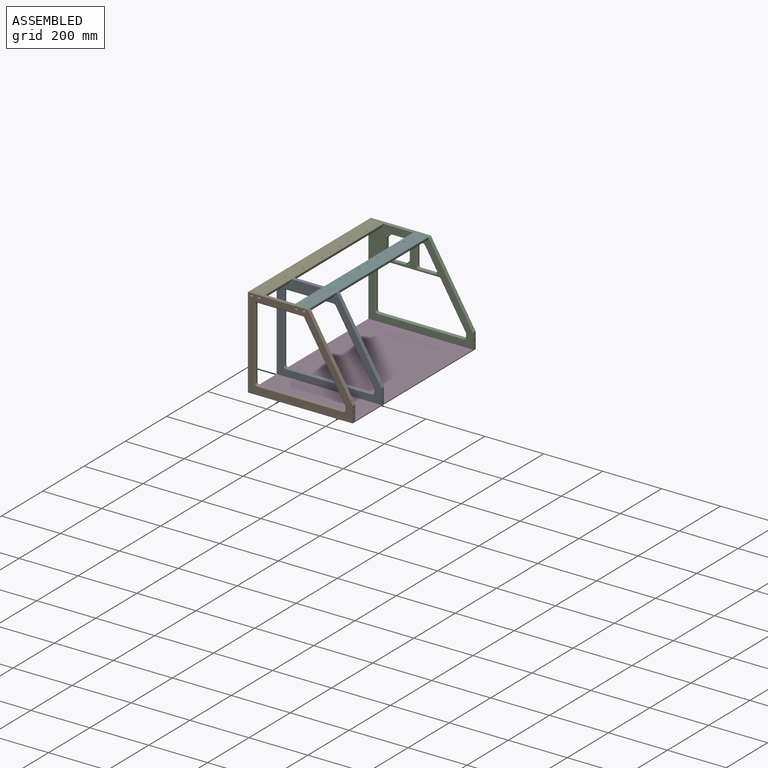
[diagram: assembled view]
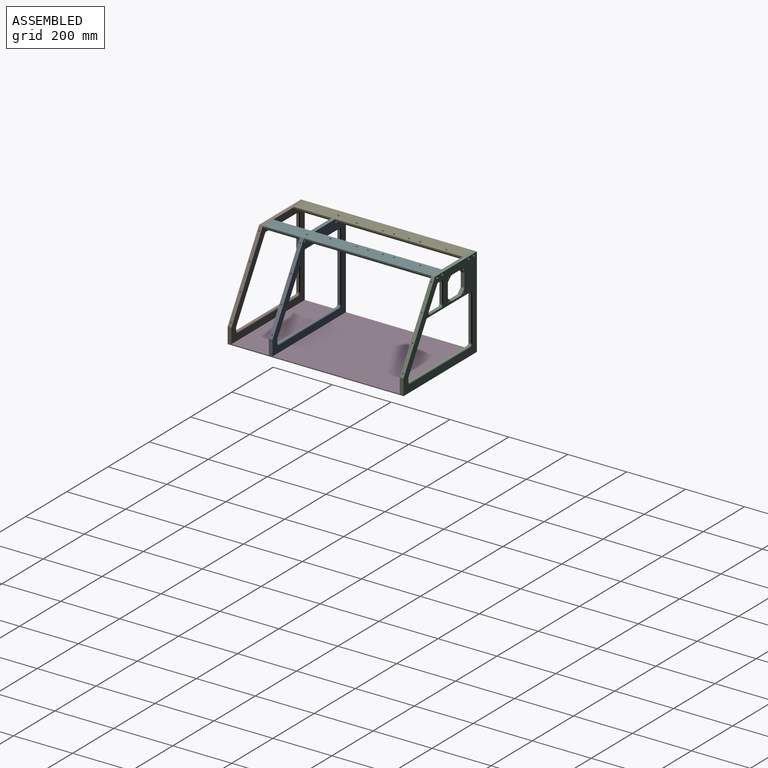
[diagram: assembled view, second angle]
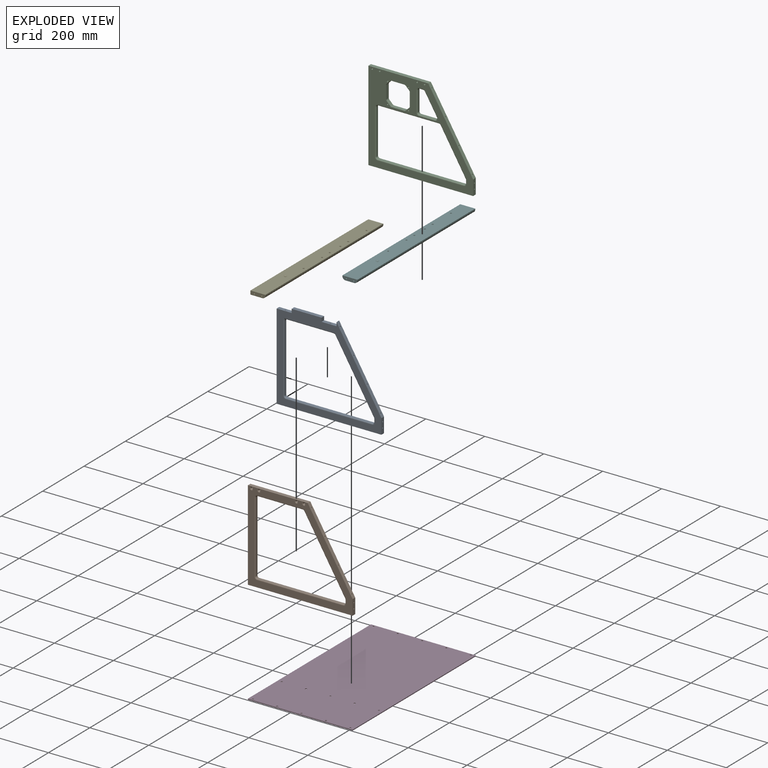
[diagram: exploded view]
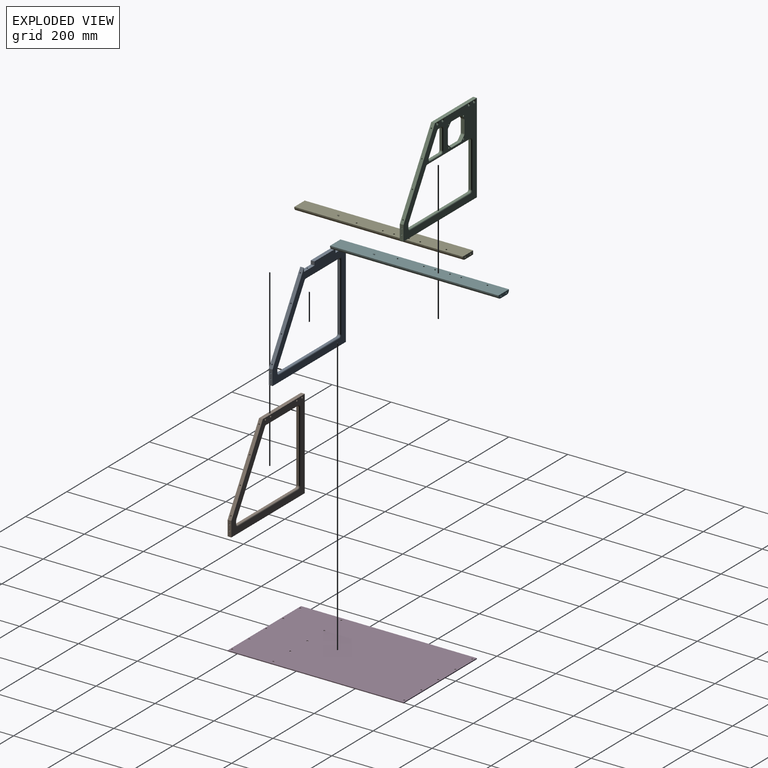
[diagram: exploded view, second angle]
ASSEMBLY  parts=6 mates=5
PART A: 81 faces, bbox 12.7x355.6x304.8 mm
  f0: cone r=2.52mm half-angle=45deg, axis (0,0,1), area 8.7mm2, adj f1,f67
  f1: cylinder r=2.1mm len=11.97mm, axis (0,0,1), area 157.9mm2, adj f0,f2
  f2: cone r=2.1mm half-angle=59deg, axis (0,0,1), area 16.2mm2, adj f1
  f3: cone r=2.52mm half-angle=45deg, axis (0,0,1), area 8.7mm2, adj f4,f64
  f4: cylinder r=2.1mm len=11.97mm, axis (0,0,1), area 157.9mm2, adj f3,f5
  f5: cone r=2.1mm half-angle=59deg, axis (0,0,1), area 16.2mm2, adj f4
  f6: cylinder r=2.1mm len=12.4mm, axis (0,1,0), area 163.6mm2, adj f7,f38
  f7: cone r=2.1mm half-angle=59deg, axis (0,1,0), area 16.2mm2, adj f6
  f8: cylinder r=2.1mm len=12.4mm, axis (0,1,0), area 163.6mm2, adj f9,f38
  f9: cone r=2.1mm half-angle=59deg, axis (0,1,0), area 16.2mm2, adj f8
  f10: cylinder r=2.1mm len=12.4mm, axis (0,-1,0), area 163.6mm2, adj f11,f36
  f11: cone r=2.1mm half-angle=59deg, axis (0,-1,0), area 16.2mm2, adj f10
  f12: cylinder r=2.1mm len=12.4mm, axis (0,-1,0), area 163.6mm2, adj f13,f36
  f13: cone r=2.1mm half-angle=59deg, axis (0,-1,0), area 16.2mm2, adj f12
  f14: cylinder r=2.1mm len=12.4mm, axis (0,-1,0), area 163.6mm2, adj f15,f36
  f15: cone r=2.1mm half-angle=59deg, axis (0,-1,0), area 16.2mm2, adj f14
  f16: cylinder r=2.1mm len=12.4mm, axis (0,-1,0), area 163.6mm2, adj f17,f36
  f17: cone r=2.1mm half-angle=59deg, axis (0,-1,0), area 16.2mm2, adj f16
  f18: cylinder r=2.1mm len=12.4mm, axis (0,0,-1), area 163.6mm2, adj f19,f37
  f19: cone r=2.1mm half-angle=59deg, axis (0,0,-1), area 16.2mm2, adj f18
  f20: cylinder r=2.1mm len=12.4mm, axis (0,0,-1), area 163.6mm2, adj f21,f37
  f21: cone r=2.1mm half-angle=59deg, axis (0,0,-1), area 16.2mm2, adj f20
  f22: cylinder r=2.1mm len=12.4mm, axis (0,0,-1), area 163.6mm2, adj f23,f37
  f23: cone r=2.1mm half-angle=59deg, axis (0,0,-1), area 16.2mm2, adj f22
  f24: cylinder r=2.1mm len=12.4mm, axis (0,0,-1), area 163.6mm2, adj f25,f37
  f25: cone r=2.1mm half-angle=59deg, axis (0,0,-1), area 16.2mm2, adj f24
  f26: cylinder r=2.1mm len=12.4mm, axis (0,0,-1), area 163.6mm2, adj f27,f37
  f27: cone r=2.1mm half-angle=59deg, axis (0,0,-1), area 16.2mm2, adj f26
  f28: cylinder r=2.1mm len=11.89mm, axis (0,0.86,0.51), area 133.1mm2, adj f39,f69
  f29: cylinder r=2.1mm len=12.79mm, axis (0,0.86,0.51), area 163.6mm2, adj f30,f39
  f30: cone r=2.1mm half-angle=59deg, axis (0,0.86,0.51), area 16.2mm2, adj f29
  f31: cylinder r=2.1mm len=12.79mm, axis (0,0.86,0.51), area 163.6mm2, adj f32,f39
  f32: cone r=2.1mm half-angle=59deg, axis (0,0.86,0.51), area 16.2mm2, adj f31
  f33: cylinder r=2.1mm len=12.79mm, axis (0,0.86,0.51), area 163.6mm2, adj f34,f39
  f34: cone r=2.1mm half-angle=59deg, axis (0,0.86,0.51), area 16.2mm2, adj f33
  f35: plane 101.6x12.7mm, normal (0,0,1), area 1290.3mm2, adj f40,f41,f65,f66
  f36: plane 292.1x12.7mm, normal (0,-1,0), area 3654.3mm2, adj f10,f12,f14,f16,f37,f40,f41,f67
  f37: plane 355.6x12.7mm, normal (0,0,-1), area 4446.8mm2, adj f18,f20,f22,f24,f26,f36,f38,f40
  f38: plane 50.8x12.7mm, normal (0,1,0), area 617.5mm2, adj f6,f8,f37,f39,f40,f41
  f39: plane 254x152.4mm, normal (0,0.86,0.51), area 3706.5mm2, adj f28,f29,f31,f33,f38,f40,f41,f63
  f40: plane 355.6x304.8mm, normal (1,0,0), area 25943.8mm2, adj f35,f36,f37,f38,f39,f56,f57,f58
  f41: plane 355.6x304.8mm, normal (-1,0,0), area 25943.8mm2, adj f35,f36,f37,f38,f39,f49,f50,f51
  f42: cylinder r=6.35mm len=6.35mm, axis (-1,0,0), area 63.3mm2, adj f43,f48,f50,f57
  f43: plane 10.26x6.35mm, normal (0,-1,0), area 65.1mm2, adj f42,f44,f52,f59
  f44: cylinder r=6.35mm len=6.35mm, axis (-1,0,0), area 21.8mm2, adj f43,f45,f54,f61
  f45: plane 217.73x130.64mm, normal (0,-0.86,-0.51), area 1612.3mm2, adj f44,f55,f62,f79
  f46: plane 227.33x6.35mm, normal (0,1,0), area 1443.5mm2, adj f47,f53,f60,f76
  f47: cylinder r=6.35mm len=6.35mm, axis (-1,0,0), area 63.3mm2, adj f46,f48,f51,f58
  f48: plane 292.1x6.35mm, normal (0,0,1), area 1854.8mm2, adj f42,f47,f49,f56
  f49: cylinder r=3.17mm len=292.1mm, axis (0,-1,0), area 1456.8mm2, adj f41,f48,f50,f51
  f50: torus R=9.53mm, axis (1,0,0), area 58.8mm2, adj f41,f42,f49,f52
  f51: torus R=9.53mm, axis (1,0,0), area 58.8mm2, adj f41,f47,f49,f53
  f52: cylinder r=3.17mm len=10.26mm, axis (0,0,-1), area 51.1mm2, adj f41,f43,f50,f54
  f53: cylinder r=3.17mm len=238.13mm, axis (0,0,1), area 1153.3mm2, adj f41,f46,f51,f77
  f54: torus R=9.53mm, axis (1,0,0), area 20.2mm2, adj f41,f44,f52,f55
  f55: cylinder r=3.17mm len=224.6mm, axis (0,0.51,-0.86), area 1277.4mm2, adj f41,f45,f54,f78
  f56: cylinder r=3.17mm len=292.1mm, axis (0,1,0), area 1456.8mm2, adj f40,f48,f57,f58
  f57: torus R=9.53mm, axis (1,0,0), area 58.8mm2, adj f40,f42,f56,f59
  f58: torus R=9.53mm, axis (1,0,0), area 58.8mm2, adj f40,f47,f56,f60
  f59: cylinder r=3.17mm len=10.26mm, axis (0,0,1), area 51.1mm2, adj f40,f43,f57,f61
  f60: cylinder r=3.17mm len=238.13mm, axis (0,0,-1), area 1153.3mm2, adj f40,f46,f58,f75
  f61: torus R=9.53mm, axis (1,0,0), area 20.2mm2, adj f40,f44,f59,f62
  f62: cylinder r=3.17mm len=224.6mm, axis (0,-0.51,0.86), area 1277.4mm2, adj f40,f45,f61,f80
  f63: plane 12.7x12.24mm, normal (0,-1,0), area 155.5mm2, adj f39,f40,f41,f73
  f64: plane 49.89x12.7mm, normal (0,0,1), area 613.5mm2, adj f3,f40,f41,f73,f74
  f65: plane 12.7x12.24mm, normal (0,1,0), area 155.5mm2, adj f35,f40,f41,f74
  f66: plane 12.7x12.24mm, normal (0,-1,0), area 155.5mm2, adj f35,f40,f41,f72
  f67: plane 50.34x12.7mm, normal (0,0,1), area 619.3mm2, adj f0,f36,f40,f41,f72
  f68: plane 159.1x6.35mm, normal (0,0,-1), area 1010.3mm2, adj f70,f71,f76,f79
  f69: plane 4.9x4.2mm, normal (0,1,0), area 16.2mm2, adj f28
  f70: cylinder r=3.17mm len=176.01mm, axis (0,-1,0), area 824.1mm2, adj f41,f68,f77,f78
  f71: cylinder r=3.17mm len=176.01mm, axis (0,1,0), area 824.1mm2, adj f40,f68,f75,f80
  f72: cylinder r=0.46mm len=12.7mm, axis (-1,0,0), area 9.1mm2, adj f40,f41,f66,f67
  f73: cylinder r=0.46mm len=12.7mm, axis (-1,0,0), area 9.1mm2, adj f40,f41,f63,f64
  f74: cylinder r=0.46mm len=12.7mm, axis (-1,0,0), area 9.1mm2, adj f40,f41,f64,f65
  f75: bspline ~10.8x10.8mm, area 51.1mm2, adj f60,f71,f76
  f76: cylinder r=7.62mm len=7.62mm, axis (1,0,0), area 76mm2, adj f46,f68,f75,f77
  f77: bspline ~10.8x10.8mm, area 51.1mm2, adj f53,f70,f76
  f78: bspline ~6.87x6.53mm, area 27.8mm2, adj f55,f70,f79
  f79: cylinder r=7.62mm len=6.53mm, axis (-1,0,0), area 49.9mm2, adj f45,f68,f78,f80
  f80: bspline ~6.87x6.53mm, area 27.8mm2, adj f62,f71,f79
PART B: 75 faces, bbox 12.7x355.6x304.8 mm
  f0: cylinder r=2.1mm len=12.4mm, axis (0,1,0), area 163.6mm2, adj f1,f41
  f1: cone r=2.1mm half-angle=59deg, axis (0,1,0), area 16.2mm2, adj f0
  f2: cylinder r=2.1mm len=12.4mm, axis (0,1,0), area 163.6mm2, adj f3,f41
  f3: cone r=2.1mm half-angle=59deg, axis (0,1,0), area 16.2mm2, adj f2
  f4: cylinder r=2.1mm len=12.4mm, axis (0,-1,0), area 163.6mm2, adj f5,f39
  f5: cone r=2.1mm half-angle=59deg, axis (0,-1,0), area 16.2mm2, adj f4
  f6: cylinder r=2.1mm len=12.4mm, axis (0,-1,0), area 163.6mm2, adj f7,f39
  f7: cone r=2.1mm half-angle=59deg, axis (0,-1,0), area 16.2mm2, adj f6
  f8: cylinder r=2.1mm len=12.4mm, axis (0,-1,0), area 163.6mm2, adj f9,f39
  f9: cone r=2.1mm half-angle=59deg, axis (0,-1,0), area 16.2mm2, adj f8
  f10: cylinder r=2.1mm len=12.4mm, axis (0,-1,0), area 163.6mm2, adj f11,f39
  f11: cone r=2.1mm half-angle=59deg, axis (0,-1,0), area 16.2mm2, adj f10
  f12: cylinder r=2.1mm len=12.4mm, axis (0,0,-1), area 163.6mm2, adj f13,f40
  f13: cone r=2.1mm half-angle=59deg, axis (0,0,-1), area 16.2mm2, adj f12
  f14: cylinder r=2.1mm len=12.4mm, axis (0,0,-1), area 163.6mm2, adj f15,f40
  f15: cone r=2.1mm half-angle=59deg, axis (0,0,-1), area 16.2mm2, adj f14
  f16: cylinder r=2.1mm len=12.4mm, axis (0,0,-1), area 163.6mm2, adj f17,f40
  f17: cone r=2.1mm half-angle=59deg, axis (0,0,-1), area 16.2mm2, adj f16
  f18: cylinder r=2.1mm len=12.4mm, axis (0,0,-1), area 163.6mm2, adj f19,f40
  f19: cone r=2.1mm half-angle=59deg, axis (0,0,-1), area 16.2mm2, adj f18
  f20: cylinder r=2.1mm len=12.4mm, axis (0,0,-1), area 163.6mm2, adj f21,f40
  f21: cone r=2.1mm half-angle=59deg, axis (0,0,-1), area 16.2mm2, adj f20
  f22: cone r=5.2mm half-angle=45deg, axis (1,0,0), area 86.5mm2, adj f23,f43
  f23: cylinder r=2.75mm len=10.25mm, axis (1,0,0), area 177.1mm2, adj f22,f44
  f24: cone r=5.2mm half-angle=45deg, axis (1,0,0), area 86.5mm2, adj f25,f43
  f25: cylinder r=2.75mm len=10.25mm, axis (1,0,0), area 177.1mm2, adj f24,f44
  f26: cone r=5.2mm half-angle=45deg, axis (1,0,0), area 86.5mm2, adj f27,f43
  f27: cylinder r=2.75mm len=10.25mm, axis (1,0,0), area 177.1mm2, adj f26,f44
  f28: cone r=5.2mm half-angle=45deg, axis (1,0,0), area 86.5mm2, adj f29,f43
  f29: cylinder r=2.75mm len=10.25mm, axis (1,0,0), area 177.1mm2, adj f28,f44
  f30: cylinder r=2.1mm len=12.79mm, axis (0,0.86,0.51), area 163.6mm2, adj f31,f42
  f31: cone r=2.1mm half-angle=59deg, axis (0,0.86,0.51), area 16.2mm2, adj f30
  f32: cylinder r=2.1mm len=12.79mm, axis (0,0.86,0.51), area 163.6mm2, adj f33,f42
  f33: cone r=2.1mm half-angle=59deg, axis (0,0.86,0.51), area 16.2mm2, adj f32
  f34: cylinder r=2.1mm len=12.79mm, axis (0,0.86,0.51), area 163.6mm2, adj f35,f42
  f35: cone r=2.1mm half-angle=59deg, axis (0,0.86,0.51), area 16.2mm2, adj f34
  f36: cylinder r=2.1mm len=12.79mm, axis (0,0.86,0.51), area 163.6mm2, adj f37,f42
  f37: cone r=2.1mm half-angle=59deg, axis (0,0.86,0.51), area 16.2mm2, adj f36
  f38: plane 203.2x12.7mm, normal (0,0,1), area 2580.6mm2, adj f39,f42,f43,f44
  f39: plane 304.8x12.7mm, normal (0,-1,0), area 3815.5mm2, adj f4,f6,f8,f10,f38,f40,f43,f44
  f40: plane 355.6x12.7mm, normal (0,0,-1), area 4446.8mm2, adj f12,f14,f16,f18,f20,f39,f41,f43
  f41: plane 50.8x12.7mm, normal (0,1,0), area 617.5mm2, adj f0,f2,f40,f42,f43,f44
  f42: plane 254x152.4mm, normal (0,0.86,0.51), area 3706.5mm2, adj f30,f32,f34,f36,f38,f41,f43,f44
  f43: plane 355.6x304.8mm, normal (1,0,0), area 24731.4mm2, adj f22,f24,f26,f28,f38,f39,f40,f41
  f44: plane 355.6x304.8mm, normal (-1,0,0), area 24976.1mm2, adj f23,f25,f27,f29,f38,f39,f40,f41
  f45: cylinder r=6.35mm len=6.35mm, axis (-1,0,0), area 63.3mm2, adj f46,f54,f56,f66
  f46: plane 10.26x6.35mm, normal (0,-1,0), area 65.1mm2, adj f45,f47,f58,f68
  f47: cylinder r=6.35mm len=6.35mm, axis (-1,0,0), area 21.8mm2, adj f46,f48,f60,f70
  f48: plane 231.04x138.63mm, normal (0,-0.86,-0.51), area 1711mm2, adj f47,f49,f62,f72
  f49: cylinder r=6.35mm len=6.35mm, axis (-1,0,0), area 41.5mm2, adj f48,f50,f64,f74
  f50: plane 153.47x6.35mm, normal (0,0,-1), area 974.6mm2, adj f49,f51,f63,f73
  f51: cylinder r=6.35mm len=6.35mm, axis (-1,0,0), area 63.3mm2, adj f50,f52,f61,f71
  f52: plane 241.3x6.35mm, normal (0,1,0), area 1532.3mm2, adj f51,f53,f59,f69
  f53: cylinder r=6.35mm len=6.35mm, axis (-1,0,0), area 63.3mm2, adj f52,f54,f57,f67
  f54: plane 292.1x6.35mm, normal (0,0,1), area 1854.8mm2, adj f45,f53,f55,f65
  f55: cylinder r=3.17mm len=292.1mm, axis (0,-1,0), area 1456.8mm2, adj f44,f54,f56,f57
  f56: torus R=9.53mm, axis (1,0,0), area 58.8mm2, adj f44,f45,f55,f58
  f57: torus R=9.53mm, axis (1,0,0), area 58.8mm2, adj f44,f53,f55,f59
  f58: cylinder r=3.17mm len=10.26mm, axis (0,0,-1), area 51.1mm2, adj f44,f46,f56,f60
  f59: cylinder r=3.17mm len=241.3mm, axis (0,0,1), area 1203.4mm2, adj f44,f52,f57,f61
  f60: torus R=9.53mm, axis (1,0,0), area 20.2mm2, adj f44,f47,f58,f62
  f61: torus R=9.53mm, axis (1,0,0), area 58.8mm2, adj f44,f51,f59,f63
  f62: cylinder r=3.17mm len=232.68mm, axis (0,0.51,-0.86), area 1343.8mm2, adj f44,f48,f60,f64
  f63: cylinder r=3.17mm len=153.47mm, axis (0,1,0), area 765.4mm2, adj f44,f50,f61,f64
  f64: torus R=9.53mm, axis (1,0,0), area 38.6mm2, adj f44,f49,f62,f63
  f65: cylinder r=3.17mm len=292.1mm, axis (0,1,0), area 1456.8mm2, adj f43,f54,f66,f67
  f66: torus R=9.53mm, axis (1,0,0), area 58.8mm2, adj f43,f45,f65,f68
  f67: torus R=9.53mm, axis (1,0,0), area 58.8mm2, adj f43,f53,f65,f69
  f68: cylinder r=3.17mm len=10.26mm, axis (0,0,1), area 51.1mm2, adj f43,f46,f66,f70
  f69: cylinder r=3.17mm len=241.3mm, axis (0,0,-1), area 1203.4mm2, adj f43,f52,f67,f71
  f70: torus R=9.53mm, axis (1,0,0), area 20.2mm2, adj f43,f47,f68,f72
  f71: torus R=9.53mm, axis (1,0,0), area 58.8mm2, adj f43,f51,f69,f73
  f72: cylinder r=3.17mm len=232.68mm, axis (0,-0.51,0.86), area 1343.8mm2, adj f43,f48,f70,f74
  f73: cylinder r=3.17mm len=153.47mm, axis (0,-1,0), area 765.4mm2, adj f43,f50,f71,f74
  f74: torus R=9.53mm, axis (1,0,0), area 38.6mm2, adj f43,f49,f72,f73
PART C: 111 faces, bbox 12.7x355.6x304.8 mm
  f0: cylinder r=2.38mm len=12.7mm, axis (1,0,0), area 190mm2, adj f41,f42
  f1: cylinder r=2.38mm len=12.7mm, axis (1,0,0), area 190mm2, adj f41,f42
  f2: cylinder r=2.38mm len=12.7mm, axis (1,0,0), area 190mm2, adj f41,f42
  f3: cylinder r=2.38mm len=12.7mm, axis (1,0,0), area 190mm2, adj f41,f42
  f4: cone r=5.2mm half-angle=45deg, axis (-1,0,0), area 86.5mm2, adj f5,f42
  f5: cylinder r=2.75mm len=10.25mm, axis (-1,0,0), area 177.1mm2, adj f4,f41
  f6: cone r=5.2mm half-angle=45deg, axis (-1,0,0), area 86.5mm2, adj f7,f42
  f7: cylinder r=2.75mm len=10.25mm, axis (-1,0,0), area 177.1mm2, adj f6,f41
  f8: cone r=5.2mm half-angle=45deg, axis (-1,0,0), area 86.5mm2, adj f9,f42
  f9: cylinder r=2.75mm len=10.25mm, axis (-1,0,0), area 177.1mm2, adj f8,f41
  f10: cone r=5.2mm half-angle=45deg, axis (-1,0,0), area 86.5mm2, adj f11,f42
  f11: cylinder r=2.75mm len=10.25mm, axis (-1,0,0), area 177.1mm2, adj f10,f41
  f12: torus R=9.53mm, axis (1,0,0), area 79mm2, adj f42,f72,f87,f90
  f13: torus R=9.53mm, axis (1,0,0), area 79mm2, adj f41,f72,f80,f83
  f14: cylinder r=2.1mm len=12.4mm, axis (0,1,0), area 163.6mm2, adj f15,f39
  f15: cone r=2.1mm half-angle=59deg, axis (0,1,0), area 16.2mm2, adj f14
  f16: cylinder r=2.1mm len=12.4mm, axis (0,1,0), area 163.6mm2, adj f17,f39
  f17: cone r=2.1mm half-angle=59deg, axis (0,1,0), area 16.2mm2, adj f16
  f18: cylinder r=2.1mm len=12.4mm, axis (0,0,-1), area 163.6mm2, adj f19,f38
  f19: cone r=2.1mm half-angle=59deg, axis (0,0,-1), area 16.2mm2, adj f18
  f20: cylinder r=2.1mm len=12.4mm, axis (0,0,-1), area 163.6mm2, adj f21,f38
  f21: cone r=2.1mm half-angle=59deg, axis (0,0,-1), area 16.2mm2, adj f20
  f22: cylinder r=2.1mm len=12.4mm, axis (0,0,-1), area 163.6mm2, adj f23,f38
  f23: cone r=2.1mm half-angle=59deg, axis (0,0,-1), area 16.2mm2, adj f22
  f24: cylinder r=2.1mm len=12.4mm, axis (0,0,-1), area 163.6mm2, adj f25,f38
  f25: cone r=2.1mm half-angle=59deg, axis (0,0,-1), area 16.2mm2, adj f24
  f26: cylinder r=2.1mm len=12.4mm, axis (0,0,-1), area 163.6mm2, adj f27,f38
  f27: cone r=2.1mm half-angle=59deg, axis (0,0,-1), area 16.2mm2, adj f26
  f28: cylinder r=2.1mm len=12.79mm, axis (0,0.86,0.51), area 163.6mm2, adj f29,f40
  f29: cone r=2.1mm half-angle=59deg, axis (0,0.86,0.51), area 16.2mm2, adj f28
  f30: cylinder r=2.1mm len=12.79mm, axis (0,0.86,0.51), area 163.6mm2, adj f31,f40
  f31: cone r=2.1mm half-angle=59deg, axis (0,0.86,0.51), area 16.2mm2, adj f30
  f32: cylinder r=2.1mm len=12.79mm, axis (0,0.86,0.51), area 163.6mm2, adj f33,f40
  f33: cone r=2.1mm half-angle=59deg, axis (0,0.86,0.51), area 16.2mm2, adj f32
  f34: cylinder r=2.1mm len=12.79mm, axis (0,0.86,0.51), area 163.6mm2, adj f35,f40
  f35: cone r=2.1mm half-angle=59deg, axis (0,0.86,0.51), area 16.2mm2, adj f34
  f36: plane 203.2x12.7mm, normal (0,0,1), area 2580.6mm2, adj f37,f40,f41,f42
  f37: plane 304.8x12.7mm, normal (0,-1,0), area 3871mm2, adj f36,f38,f41,f42
  f38: plane 355.6x12.7mm, normal (0,0,-1), area 4446.8mm2, adj f18,f20,f22,f24,f26,f37,f39,f41
  f39: plane 50.8x12.7mm, normal (0,1,0), area 617.5mm2, adj f14,f16,f38,f40,f41,f42
  f40: plane 254x152.4mm, normal (0,0.86,0.51), area 3706.5mm2, adj f28,f30,f32,f34,f36,f39,f41,f42
  f41: plane 355.6x304.8mm, normal (1,0,0), area 31754.1mm2, adj f0,f1,f2,f3,f5,f7,f9,f11
  f42: plane 355.6x304.8mm, normal (-1,0,0), area 31509.3mm2, adj f0,f1,f2,f3,f4,f6,f8,f10
  f43: cylinder r=6.35mm len=6.35mm, axis (-1,0,0), area 63.3mm2, adj f44,f49,f51,f58
  f44: plane 10.26x6.35mm, normal (0,-1,0), area 65.1mm2, adj f43,f45,f53,f60
  f45: cylinder r=6.35mm len=6.35mm, axis (-1,0,0), area 21.8mm2, adj f44,f46,f55,f62
  f46: plane 142.14x85.29mm, normal (0,-0.86,-0.51), area 1052.6mm2, adj f45,f56,f63,f66
  f47: plane 152.4x6.35mm, normal (0,1,0), area 967.7mm2, adj f48,f54,f61,f64
  f48: cylinder r=6.35mm len=6.35mm, axis (-1,0,0), area 63.3mm2, adj f47,f49,f52,f59
  f49: plane 292.1x6.35mm, normal (0,0,1), area 1854.8mm2, adj f43,f48,f50,f57
  f50: cylinder r=3.17mm len=292.1mm, axis (0,-1,0), area 1456.8mm2, adj f42,f49,f51,f52
  f51: torus R=9.53mm, axis (1,0,0), area 58.8mm2, adj f42,f43,f50,f53
  f52: torus R=9.53mm, axis (1,0,0), area 58.8mm2, adj f42,f48,f50,f54
  f53: cylinder r=3.17mm len=10.26mm, axis (0,0,-1), area 51.1mm2, adj f42,f44,f51,f55
  f54: cylinder r=3.17mm len=152.4mm, axis (0,0,1), area 760.1mm2, adj f42,f47,f52,f96
  f55: torus R=9.53mm, axis (1,0,0), area 20.2mm2, adj f42,f45,f53,f56
  f56: cylinder r=3.17mm len=143.78mm, axis (0,0.51,-0.86), area 826.7mm2, adj f42,f46,f55,f98
  f57: cylinder r=3.17mm len=292.1mm, axis (0,1,0), area 1456.8mm2, adj f41,f49,f58,f59
  f58: torus R=9.53mm, axis (1,0,0), area 58.8mm2, adj f41,f43,f57,f60
  f59: torus R=9.53mm, axis (1,0,0), area 58.8mm2, adj f41,f48,f57,f61
  f60: cylinder r=3.17mm len=10.26mm, axis (0,0,1), area 51.1mm2, adj f41,f44,f58,f62
  f61: cylinder r=3.17mm len=152.4mm, axis (0,0,-1), area 760.1mm2, adj f41,f47,f59,f93
  f62: torus R=9.53mm, axis (1,0,0), area 20.2mm2, adj f41,f45,f60,f63
  f63: cylinder r=3.17mm len=143.78mm, axis (0,-0.51,0.86), area 826.7mm2, adj f41,f46,f62,f95
  f64: cylinder r=6.35mm len=6.35mm, axis (-1,0,0), area 63.3mm2, adj f47,f65,f93,f96
  f65: plane 206.81x6.35mm, normal (0,0,-1), area 1313.3mm2, adj f64,f66,f94,f97
  f66: cylinder r=6.35mm len=6.35mm, axis (-1,0,0), area 41.5mm2, adj f46,f65,f95,f98
  f67: plane 43.32x12.7mm, normal (0,1,0), area 550.1mm2, adj f41,f42,f104,f107
  f68: plane 43.32x12.7mm, normal (0,0,1), area 550.1mm2, adj f41,f42,f103,f106
  f69: plane 43.32x12.7mm, normal (0,-1,0), area 550.1mm2, adj f41,f42,f105,f110
  f70: cylinder r=6.35mm len=6.35mm, axis (-1,0,0), area 63.3mm2, adj f71,f74,f85,f92
  f71: plane 53.4x6.35mm, normal (0,0,1), area 339.1mm2, adj f70,f72,f83,f90
  f72: cylinder r=6.35mm len=9.62mm, axis (-1,0,0), area 85.1mm2, adj f12,f13,f71,f77
  f73: cylinder r=6.35mm len=6.35mm, axis (-1,0,0), area 63.3mm2, adj f74,f76,f82,f89
  f74: plane 67.63x6.35mm, normal (0,1,0), area 429.4mm2, adj f70,f73,f84,f91
  f75: cylinder r=6.35mm len=6.35mm, axis (-1,0,0), area 41.5mm2, adj f76,f77,f79,f86
  f76: plane 12.82x6.35mm, normal (0,0,-1), area 81.4mm2, adj f73,f75,f81,f88
  f77: plane 67.63x40.58mm, normal (0,-0.86,-0.51), area 500.8mm2, adj f72,f75,f80,f87
  f78: plane 43.32x12.7mm, normal (0,0,-1), area 550.1mm2, adj f41,f42,f108,f109
  f79: torus R=9.53mm, axis (1,0,0), area 38.6mm2, adj f41,f75,f80,f81
  f80: cylinder r=3.17mm len=69.26mm, axis (0,-0.51,0.86), area 393.3mm2, adj f13,f41,f77,f79
  f81: cylinder r=3.17mm len=12.82mm, axis (0,-1,0), area 63.9mm2, adj f41,f76,f79,f82
  f82: torus R=9.53mm, axis (1,0,0), area 58.8mm2, adj f41,f73,f81,f84
  f83: cylinder r=3.17mm len=53.4mm, axis (0,1,0), area 266.3mm2, adj f13,f41,f71,f85
  f84: cylinder r=3.17mm len=67.63mm, axis (0,0,-1), area 337.3mm2, adj f41,f74,f82,f85
  f85: torus R=9.53mm, axis (1,0,0), area 58.8mm2, adj f41,f70,f83,f84
  f86: torus R=9.53mm, axis (1,0,0), area 38.6mm2, adj f42,f75,f87,f88
  f87: cylinder r=3.17mm len=69.26mm, axis (0,0.51,-0.86), area 393.3mm2, adj f12,f42,f77,f86
  f88: cylinder r=3.17mm len=12.82mm, axis (0,1,0), area 63.9mm2, adj f42,f76,f86,f89
  f89: torus R=9.53mm, axis (1,0,0), area 58.8mm2, adj f42,f73,f88,f91
  f90: cylinder r=3.17mm len=53.4mm, axis (0,-1,0), area 266.3mm2, adj f12,f42,f71,f92
  f91: cylinder r=3.17mm len=67.63mm, axis (0,0,1), area 337.3mm2, adj f42,f74,f89,f92
  f92: torus R=9.53mm, axis (1,0,0), area 58.8mm2, adj f42,f70,f90,f91
  f93: torus R=9.53mm, axis (1,0,0), area 58.8mm2, adj f41,f61,f64,f94
  f94: cylinder r=3.17mm len=206.81mm, axis (0,-1,0), area 1031.4mm2, adj f41,f65,f93,f95
  f95: torus R=9.53mm, axis (1,0,0), area 38.6mm2, adj f41,f63,f66,f94
  f96: torus R=9.53mm, axis (1,0,0), area 58.8mm2, adj f42,f54,f64,f97
  f97: cylinder r=3.17mm len=206.81mm, axis (0,1,0), area 1031.4mm2, adj f42,f65,f96,f98
  f98: torus R=9.53mm, axis (1,0,0), area 38.6mm2, adj f42,f56,f66,f97
  f99: plane 12.7x12.16mm, normal (0,-0.71,-0.71), area 218.3mm2, adj f41,f42,f109,f110
  f100: plane 12.7x12.16mm, normal (0,0.71,-0.71), area 218.3mm2, adj f41,f42,f107,f108
  f101: plane 12.7x12.16mm, normal (0,-0.71,0.71), area 218.3mm2, adj f41,f42,f105,f106
  f102: plane 12.7x12.16mm, normal (0,0.71,0.71), area 218.3mm2, adj f41,f42,f103,f104
  f103: cylinder r=6.35mm len=12.7mm, axis (1,0,0), area 63.3mm2, adj f41,f42,f68,f102
  f104: cylinder r=6.35mm len=12.7mm, axis (1,0,0), area 63.3mm2, adj f41,f42,f67,f102
  f105: cylinder r=6.35mm len=12.7mm, axis (1,0,0), area 63.3mm2, adj f41,f42,f69,f101
  f106: cylinder r=6.35mm len=12.7mm, axis (1,0,0), area 63.3mm2, adj f41,f42,f68,f101
  f107: cylinder r=6.35mm len=12.7mm, axis (1,0,0), area 63.3mm2, adj f41,f42,f67,f100
  f108: cylinder r=6.35mm len=12.7mm, axis (1,0,0), area 63.3mm2, adj f41,f42,f78,f100
  f109: cylinder r=6.35mm len=12.7mm, axis (1,0,0), area 63.3mm2, adj f41,f42,f78,f99
  f110: cylinder r=6.35mm len=12.7mm, axis (1,0,0), area 63.3mm2, adj f41,f42,f69,f99
PART D: 36 faces, bbox 355.6x596.9x3.2 mm
  f0: cone r=5.2mm half-angle=45deg, axis (0,0,-1), area 86.5mm2, adj f1,f35
  f1: cylinder r=2.75mm len=5.5mm, axis (0,0,-1), area 12.5mm2, adj f0,f34
  f2: cone r=5.2mm half-angle=45deg, axis (0,0,-1), area 86.5mm2, adj f3,f35
  f3: cylinder r=2.75mm len=5.5mm, axis (0,0,-1), area 12.5mm2, adj f2,f34
  f4: cone r=5.2mm half-angle=45deg, axis (0,0,-1), area 86.5mm2, adj f5,f35
  f5: cylinder r=2.75mm len=5.5mm, axis (0,0,-1), area 12.5mm2, adj f4,f34
  f6: cone r=5.2mm half-angle=45deg, axis (0,0,-1), area 86.5mm2, adj f7,f35
  f7: cylinder r=2.75mm len=5.5mm, axis (0,0,-1), area 12.5mm2, adj f6,f34
  f8: cone r=5.2mm half-angle=45deg, axis (0,0,-1), area 86.5mm2, adj f9,f35
  f9: cylinder r=2.75mm len=5.5mm, axis (0,0,-1), area 12.5mm2, adj f8,f34
  f10: cone r=5.2mm half-angle=45deg, axis (0,0,-1), area 86.5mm2, adj f11,f35
  f11: cylinder r=2.75mm len=5.5mm, axis (0,0,-1), area 12.5mm2, adj f10,f34
  f12: cone r=5.2mm half-angle=45deg, axis (0,0,-1), area 86.5mm2, adj f13,f35
  f13: cylinder r=2.75mm len=5.5mm, axis (0,0,-1), area 12.5mm2, adj f12,f34
  f14: cone r=5.2mm half-angle=45deg, axis (0,0,-1), area 86.5mm2, adj f15,f35
  f15: cylinder r=2.75mm len=5.5mm, axis (0,0,-1), area 12.5mm2, adj f14,f34
  f16: cone r=5.2mm half-angle=45deg, axis (0,0,-1), area 86.5mm2, adj f17,f35
  f17: cylinder r=2.75mm len=5.5mm, axis (0,0,-1), area 12.5mm2, adj f16,f34
  f18: cone r=5.2mm half-angle=45deg, axis (0,0,-1), area 86.5mm2, adj f19,f35
  f19: cylinder r=2.75mm len=5.5mm, axis (0,0,-1), area 12.5mm2, adj f18,f34
  f20: cone r=5.2mm half-angle=45deg, axis (0,0,-1), area 86.5mm2, adj f21,f35
  f21: cylinder r=2.75mm len=5.5mm, axis (0,0,-1), area 12.5mm2, adj f20,f34
  f22: cone r=5.2mm half-angle=45deg, axis (0,0,-1), area 86.5mm2, adj f23,f35
  f23: cylinder r=2.75mm len=5.5mm, axis (0,0,-1), area 12.5mm2, adj f22,f34
  f24: cone r=5.2mm half-angle=45deg, axis (0,0,-1), area 86.5mm2, adj f25,f35
  f25: cylinder r=2.75mm len=5.5mm, axis (0,0,-1), area 12.5mm2, adj f24,f34
  f26: cone r=5.2mm half-angle=45deg, axis (0,0,-1), area 86.5mm2, adj f27,f35
  f27: cylinder r=2.75mm len=5.5mm, axis (0,0,-1), area 12.5mm2, adj f26,f34
  f28: cone r=5.2mm half-angle=45deg, axis (0,0,-1), area 86.5mm2, adj f29,f35
  f29: cylinder r=2.75mm len=5.5mm, axis (0,0,-1), area 12.5mm2, adj f28,f34
  f30: plane 355.6x3.18mm, normal (0,1,0), area 1129mm2, adj f31,f33,f34,f35
  f31: plane 596.9x3.18mm, normal (-1,0,0), area 1895.2mm2, adj f30,f32,f34,f35
  f32: plane 355.6x3.18mm, normal (0,-1,0), area 1129mm2, adj f31,f33,f34,f35
  f33: plane 596.9x3.18mm, normal (1,0,0), area 1895.2mm2, adj f30,f32,f34,f35
  f34: plane 596.9x355.6mm, normal (0,0,1), area 211901.3mm2, adj f1,f3,f5,f7,f9,f11,f13,f15
  f35: plane 596.9x355.6mm, normal (0,0,-1), area 210983.4mm2, adj f0,f2,f4,f6,f8,f10,f12,f14
PART E: 33 faces, bbox 571.5x50.8x12.7 mm
  f0: cylinder r=2.1mm len=8.74mm, axis (0,0,-1), area 115.3mm2, adj f1,f31
  f1: cone r=2.1mm half-angle=59deg, axis (0,0,-1), area 16.2mm2, adj f0
  f2: cylinder r=2.1mm len=8.74mm, axis (0,0,-1), area 115.3mm2, adj f3,f31
  f3: cone r=2.1mm half-angle=59deg, axis (0,0,-1), area 16.2mm2, adj f2
  f4: cone r=5.2mm half-angle=45deg, axis (0,0,1), area 86.5mm2, adj f5,f30
  f5: cylinder r=2.75mm len=10.25mm, axis (0,0,1), area 177.1mm2, adj f4,f31
  f6: cone r=5.2mm half-angle=45deg, axis (0,0,-1), area 84.2mm2, adj f7,f31,f32
  f7: cylinder r=2.75mm len=10.25mm, axis (0,0,-1), area 177.1mm2, adj f6,f30
  f8: cone r=5.2mm half-angle=45deg, axis (0,0,-1), area 84.2mm2, adj f9,f31,f32
  f9: cylinder r=2.75mm len=10.25mm, axis (0,0,-1), area 177.1mm2, adj f8,f30
  f10: cone r=5.2mm half-angle=45deg, axis (0,0,-1), area 84.2mm2, adj f11,f31,f32
  f11: cylinder r=2.75mm len=10.25mm, axis (0,0,-1), area 177.1mm2, adj f10,f30
  f12: cone r=5.2mm half-angle=45deg, axis (0,0,-1), area 84.2mm2, adj f13,f31,f32
  f13: cylinder r=2.75mm len=10.25mm, axis (0,0,-1), area 177.1mm2, adj f12,f30
  f14: cone r=5.2mm half-angle=45deg, axis (0,0,-1), area 84.2mm2, adj f15,f31,f32
  f15: cylinder r=2.75mm len=10.25mm, axis (0,0,-1), area 177.1mm2, adj f14,f30
  f16: cone r=5.2mm half-angle=45deg, axis (0,0,-1), area 84.2mm2, adj f17,f31,f32
  f17: cylinder r=2.75mm len=10.25mm, axis (0,0,-1), area 177.1mm2, adj f16,f30
  f18: cylinder r=2.1mm len=12.4mm, axis (1,0,0), area 163.6mm2, adj f19,f26
  f19: cone r=2.1mm half-angle=59deg, axis (1,0,0), area 16.2mm2, adj f18
  f20: cylinder r=2.1mm len=12.4mm, axis (1,0,0), area 163.6mm2, adj f21,f26
  f21: cone r=2.1mm half-angle=59deg, axis (1,0,0), area 16.2mm2, adj f20
  f22: cylinder r=2.1mm len=12.4mm, axis (-1,0,0), area 163.6mm2, adj f23,f28
  f23: cone r=2.1mm half-angle=59deg, axis (-1,0,0), area 16.2mm2, adj f22
  f24: cylinder r=2.1mm len=12.4mm, axis (-1,0,0), area 163.6mm2, adj f25,f28
  f25: cone r=2.1mm half-angle=59deg, axis (-1,0,0), area 16.2mm2, adj f24
  f26: plane 50.8x12.7mm, normal (1,0,0), area 595.3mm2, adj f18,f20,f27,f29,f30,f31,f32
  f27: plane 571.5x2.54mm, normal (0,-1,0), area 1451.6mm2, adj f26,f28,f30,f32
  f28: plane 50.8x12.7mm, normal (-1,0,0), area 595.3mm2, adj f22,f24,f27,f29,f30,f31,f32
  f29: plane 571.5x12.7mm, normal (0,1,0), area 7258.1mm2, adj f26,f28,f30,f31
  f30: plane 571.5x50.8mm, normal (0,0,1), area 28804.7mm2, adj f4,f7,f9,f11,f13,f15,f17,f26
  f31: plane 571.5x40.64mm, normal (0,0,-1), area 22767.5mm2, adj f0,f2,f5,f6,f8,f10,f12,f14
  f32: cylinder r=10.16mm len=571.5mm, axis (1,0,0), area 9027.1mm2, adj f6,f8,f10,f12,f14,f16,f26,f27
PART F: 34 faces, bbox 571.5x50.8x12.7 mm
  f0: cylinder r=2.1mm len=8.74mm, axis (0,0,-1), area 115.3mm2, adj f1,f31
  f1: cone r=2.1mm half-angle=59deg, axis (0,0,-1), area 16.2mm2, adj f0
  f2: cylinder r=2.1mm len=8.74mm, axis (0,0,-1), area 115.3mm2, adj f3,f31
  f3: cone r=2.1mm half-angle=59deg, axis (0,0,-1), area 16.2mm2, adj f2
  f4: cone r=5.2mm half-angle=45deg, axis (0,0,1), area 86.5mm2, adj f5,f30
  f5: cylinder r=2.75mm len=10.25mm, axis (0,0,1), area 177.1mm2, adj f4,f31
  f6: cone r=5.2mm half-angle=45deg, axis (0,0,-1), area 84.2mm2, adj f7,f31,f32
  f7: cylinder r=2.75mm len=10.25mm, axis (0,0,-1), area 177.1mm2, adj f6,f30
  f8: cone r=5.2mm half-angle=45deg, axis (0,0,-1), area 84.2mm2, adj f9,f31,f32
  f9: cylinder r=2.75mm len=10.25mm, axis (0,0,-1), area 177.1mm2, adj f8,f30
  f10: cone r=5.2mm half-angle=45deg, axis (0,0,-1), area 84.2mm2, adj f11,f31,f32
  f11: cylinder r=2.75mm len=10.25mm, axis (0,0,-1), area 177.1mm2, adj f10,f30
  f12: cone r=5.2mm half-angle=45deg, axis (0,0,-1), area 84.2mm2, adj f13,f31,f32
  f13: cylinder r=2.75mm len=10.25mm, axis (0,0,-1), area 177.1mm2, adj f12,f30
  f14: cone r=5.2mm half-angle=45deg, axis (0,0,-1), area 84.2mm2, adj f15,f31,f32
  f15: cylinder r=2.75mm len=10.25mm, axis (0,0,-1), area 177.1mm2, adj f14,f30
  f16: cone r=5.2mm half-angle=45deg, axis (0,0,-1), area 84.2mm2, adj f17,f31,f32
  f17: cylinder r=2.75mm len=10.25mm, axis (0,0,-1), area 177.1mm2, adj f16,f30
  f18: cylinder r=2.1mm len=12.4mm, axis (1,0,0), area 163.6mm2, adj f19,f26
  f19: cone r=2.1mm half-angle=59deg, axis (1,0,0), area 16.2mm2, adj f18
  f20: cylinder r=2.1mm len=12.4mm, axis (1,0,0), area 163.6mm2, adj f21,f26
  f21: cone r=2.1mm half-angle=59deg, axis (1,0,0), area 16.2mm2, adj f20
  f22: cylinder r=2.1mm len=12.4mm, axis (-1,0,0), area 163.6mm2, adj f23,f28
  f23: cone r=2.1mm half-angle=59deg, axis (-1,0,0), area 16.2mm2, adj f22
  f24: cylinder r=2.1mm len=12.4mm, axis (-1,0,0), area 163.6mm2, adj f25,f28
  f25: cone r=2.1mm half-angle=59deg, axis (-1,0,0), area 16.2mm2, adj f24
  f26: plane 50.8x12.7mm, normal (1,0,0), area 573.1mm2, adj f18,f20,f27,f29,f30,f31,f32,f33
  f27: plane 571.5x2.54mm, normal (0,1,0), area 1451.6mm2, adj f26,f28,f30,f32
  f28: plane 50.8x12.7mm, normal (-1,0,0), area 573.1mm2, adj f22,f24,f27,f29,f30,f31,f32,f33
  f29: plane 571.5x2.54mm, normal (0,-1,0), area 1451.6mm2, adj f26,f28,f30,f33
  f30: plane 571.5x50.8mm, normal (0,0,1), area 28804.7mm2, adj f4,f7,f9,f11,f13,f15,f17,f26
  f31: plane 571.5x30.48mm, normal (0,0,-1), area 16961.1mm2, adj f0,f2,f5,f6,f8,f10,f12,f14
  f32: cylinder r=10.16mm len=571.5mm, axis (1,0,0), area 9027.1mm2, adj f6,f8,f10,f12,f14,f16,f26,f27
  f33: cylinder r=10.16mm len=571.5mm, axis (-1,0,0), area 9120.7mm2, adj f26,f28,f29,f31
PLACE A rot(axis=(0,0,-1),90deg) t=(-448.11,-129.07,-108.73)mm
PLACE B rot(axis=(0,0,-1),90deg) t=(-331.82,-404.28,-42.82)mm
PLACE C rot(axis=(0,0,-1),90deg) t=(-449.83,316.63,-110.33)mm
PLACE D t=(-154.02,-118.53,-46)mm
PLACE E rot(axis=(0,0,1),90deg) t=(-428.98,-262.32,180.56)mm
PLACE F rot(axis=(0,0,1),90deg) t=(-154.02,-118.53,249.28)mm
MATE fastened B.f12 <-> D.f26  axis (0,0,-1) through (-319.12,-410.63,-42.82)mm
MATE fastened C.f18 <-> D.f16  axis (0,0,-1) through (-319.12,173.57,-42.82)mm
MATE fastened A.f18 <-> D.f8  axis (0,0,-1) through (-319.12,-270.93,-42.82)mm
MATE fastened F.f20 <-> B.f24  axis (0,-1,0) through (-141.32,-404.28,255.63)mm
MATE fastened E.f20 <-> B.f22  axis (0,-1,0) through (-319.12,-404.28,255.63)mm
